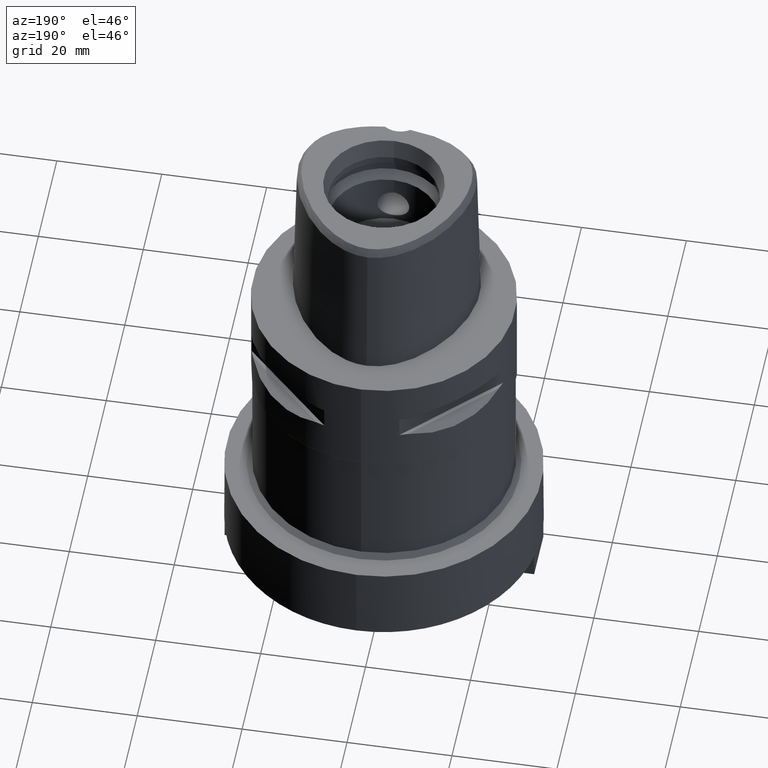
[diagram: clean part render]
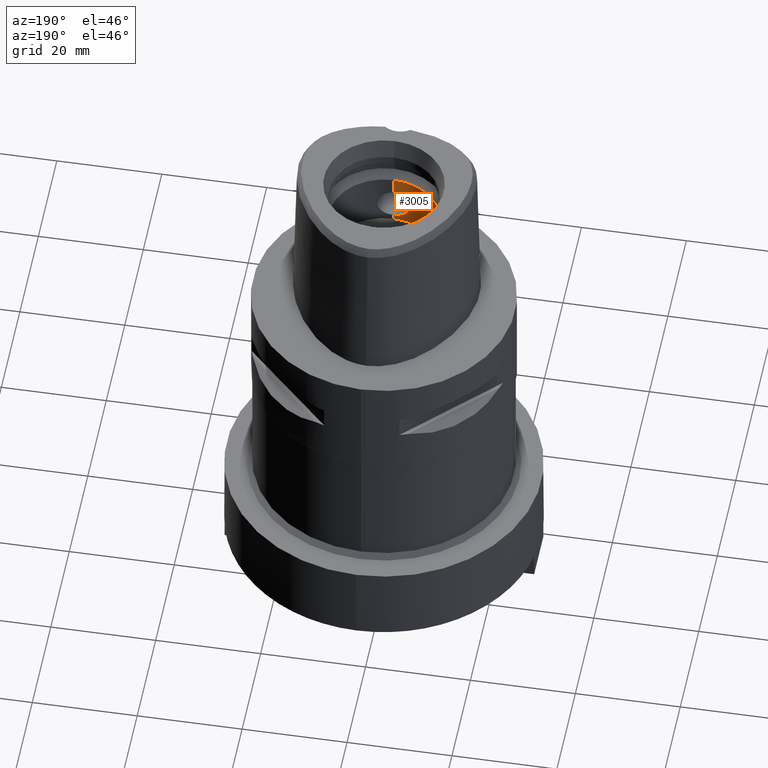
[diagram: same view with one face highlighted and labeled with its STEP entity id]
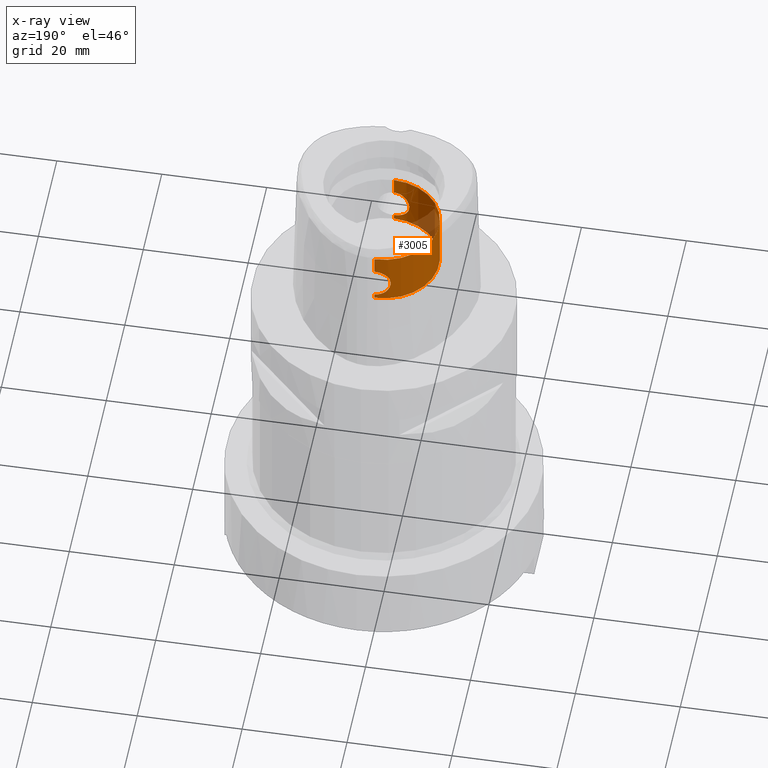
[diagram: x-ray of the same camera — body ghosted, the highlighted face saturated]
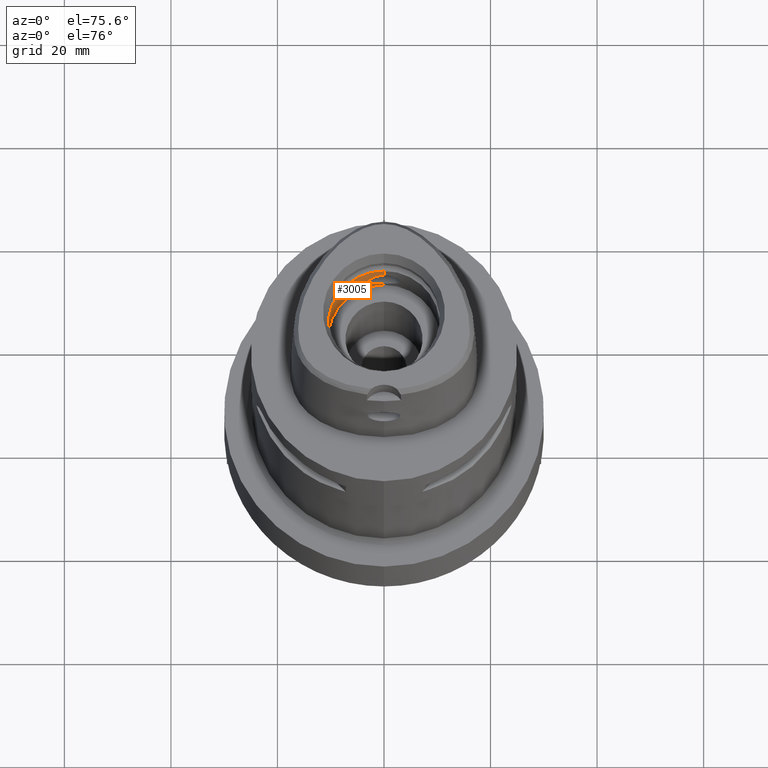
[diagram: same view with one face highlighted and labeled with its STEP entity id]
A machine part, auxiliary view. The second image highlights one B-rep face of the part: STEP entity #3005.
The next image is the same camera in x-ray: the body ghosted, the highlighted face saturated — about 11% of this face is hidden behind the body in this view.
A second angle (auxiliary view) of the same face is appended — the face is thin or edge-on in the first view.
In plain terms, the highlighted cylindrical surface (partial cylindrical patch) has radius 10.5 mm, axis along (0, 0, -1).
Its self-contained STEP definition (entity closure, byte-faithful):
#848=CARTESIAN_POINT('',(0.E0,1.610410540879E-14,1.E1));
#849=DIRECTION('',(0.E0,0.E0,-1.E0));
#850=DIRECTION('',(0.E0,-1.E0,0.E0));
#851=AXIS2_PLACEMENT_3D('',#848,#849,#850);
#872=CARTESIAN_POINT('',(0.E0,1.05E1,1.095E1));
#886=CARTESIAN_POINT('',(0.E0,1.05E1,1.705E1));
#891=DIRECTION('',(0.E0,0.E0,1.E0));
#892=VECTOR('',#891,3.35E0);
#893=CARTESIAN_POINT('',(0.E0,1.05E1,1.705E1));
#894=LINE('',#893,#892);
#912=CARTESIAN_POINT('',(0.E0,-1.05E1,1.095E1));
#917=DIRECTION('',(0.E0,0.E0,1.E0));
#918=VECTOR('',#917,9.5E-1);
#919=CARTESIAN_POINT('',(0.E0,1.05E1,1.E1));
#920=LINE('',#919,#918);
#938=CARTESIAN_POINT('',(0.E0,-1.05E1,1.095E1));
#939=CARTESIAN_POINT('',(-2.671874378010E-1,-1.05E1,1.095E1));
#940=CARTESIAN_POINT('',(-7.849210052205E-1,-1.047989530132E1,
1.101826418671E1));
#941=CARTESIAN_POINT('',(-1.524978130434E0,-1.039681972504E1,1.131776650371E1));
#942=CARTESIAN_POINT('',(-2.174059929054E0,-1.027812593696E1,1.181016231154E1));
#943=CARTESIAN_POINT('',(-2.670808578566E0,-1.015748814125E1,1.245368278313E1));
#944=CARTESIAN_POINT('',(-2.982991360778E0,-1.006802626031E1,1.321128899103E1));
#945=CARTESIAN_POINT('',(-3.083468539142E0,-1.003690021739E1,1.400149278725E1));
#946=CARTESIAN_POINT('',(-2.983142471121E0,-1.006795029898E1,1.478214584811E1));
#947=CARTESIAN_POINT('',(-2.682692769766E0,-1.015413770416E1,1.552234355639E1));
#948=CARTESIAN_POINT('',(-2.200164105292E0,-1.027238637363E1,1.616351282864E1));
#949=CARTESIAN_POINT('',(-1.549509876077E0,-1.039351810492E1,1.667017897328E1));
#950=CARTESIAN_POINT('',(-7.903728791330E-1,-1.047986038336E1,
1.698170363906E1));
#951=CARTESIAN_POINT('',(-2.686494715939E-1,-1.05E1,1.705E1));
#952=CARTESIAN_POINT('',(0.E0,-1.05E1,1.705E1));
#957=DIRECTION('',(0.E0,0.E0,1.E0));
#958=VECTOR('',#957,3.35E0);
#959=CARTESIAN_POINT('',(0.E0,-1.05E1,1.705E1));
#960=LINE('',#959,#958);
#964=CARTESIAN_POINT('',(0.E0,1.05E1,1.705E1));
#965=CARTESIAN_POINT('',(-2.671915763713E-1,1.05E1,1.705E1));
#966=CARTESIAN_POINT('',(-7.849362111640E-1,1.047989545366E1,1.698173650121E1));
#967=CARTESIAN_POINT('',(-1.525057820020E0,1.039680884418E1,1.668219430045E1));
#968=CARTESIAN_POINT('',(-2.174130501366E0,1.027811052678E1,1.618976321814E1));
#969=CARTESIAN_POINT('',(-2.670868470465E0,1.015747246527E1,1.554623631405E1));
#970=CARTESIAN_POINT('',(-2.983052802662E0,1.006800784422E1,1.478846570776E1));
#971=CARTESIAN_POINT('',(-3.083465961836E0,1.003690090642E1,1.399842799032E1));
#972=CARTESIAN_POINT('',(-2.983091359034E0,1.006796595272E1,1.321761935984E1));
#973=CARTESIAN_POINT('',(-2.682587365254E0,1.015416585409E1,1.247748638522E1));
#974=CARTESIAN_POINT('',(-2.200056203153E0,1.027240970348E1,1.183637931076E1));
#975=CARTESIAN_POINT('',(-1.549397995502E0,1.039353383713E1,1.132976295644E1));
#976=CARTESIAN_POINT('',(-7.903358102468E-1,1.047986147123E1,1.101829312234E1));
#977=CARTESIAN_POINT('',(-2.686371212201E-1,1.05E1,1.095E1));
#978=CARTESIAN_POINT('',(0.E0,1.05E1,1.095E1));
#983=DIRECTION('',(0.E0,0.E0,1.E0));
#984=VECTOR('',#983,9.5E-1);
#985=CARTESIAN_POINT('',(0.E0,-1.05E1,1.E1));
#986=LINE('',#985,#984);
#1083=CARTESIAN_POINT('',(0.E0,1.483659597167E-14,2.04E1));
#1084=DIRECTION('',(0.E0,0.E0,1.E0));
#1085=DIRECTION('',(0.E0,1.E0,0.E0));
#1086=AXIS2_PLACEMENT_3D('',#1083,#1084,#1085);
#1810=CARTESIAN_POINT('',(0.E0,1.05E1,1.E1));
#1811=CARTESIAN_POINT('',(0.E0,-1.05E1,1.E1));
#1812=VERTEX_POINT('',#1810);
#1813=VERTEX_POINT('',#1811);
#1814=VERTEX_POINT('',#872);
#1815=VERTEX_POINT('',#886);
#1816=CARTESIAN_POINT('',(0.E0,1.05E1,2.04E1));
#1817=VERTEX_POINT('',#1816);
#1818=CARTESIAN_POINT('',(0.E0,-1.05E1,2.04E1));
#1819=VERTEX_POINT('',#1818);
#1820=CARTESIAN_POINT('',(0.E0,-1.05E1,1.705E1));
#1821=VERTEX_POINT('',#1820);
#1822=VERTEX_POINT('',#912);
#2988=CARTESIAN_POINT('',(0.E0,1.610410540879E-14,3.15E1));
#2989=DIRECTION('',(0.E0,0.E0,-1.E0));
#2990=DIRECTION('',(0.E0,-1.E0,0.E0));
#2991=AXIS2_PLACEMENT_3D('',#2988,#2989,#2990);
#2992=CYLINDRICAL_SURFACE('',#2991,1.05E1);
#2994=ORIENTED_EDGE('',*,*,#2993,.T.);
#2995=ORIENTED_EDGE('',*,*,#2947,.T.);
#2997=ORIENTED_EDGE('',*,*,#2996,.F.);
#2998=ORIENTED_EDGE('',*,*,#2943,.F.);
#2999=ORIENTED_EDGE('',*,*,#2980,.T.);
#3000=ORIENTED_EDGE('',*,*,#2954,.F.);
#3001=ORIENTED_EDGE('',*,*,#2927,.F.);
#3002=ORIENTED_EDGE('',*,*,#2951,.T.);
#3003=EDGE_LOOP('',(#2994,#2995,#2997,#2998,#2999,#3000,#3001,#3002));
#3004=FACE_OUTER_BOUND('',#3003,.F.);
#852=CIRCLE('',#851,1.05E1);
#953=B_SPLINE_CURVE_WITH_KNOTS('',3,(#938,#939,#940,#941,#942,#943,#944,#945,
#946,#947,#948,#949,#950,#951,#952),.UNSPECIFIED.,.F.,.F.,(4,1,1,1,1,1,1,1,1,1,
1,1,4),(0.E0,8.333333333333E-2,1.666666666667E-1,2.5E-1,3.333333333333E-1,
4.166666666667E-1,5.E-1,5.833333333333E-1,6.666666666667E-1,7.5E-1,
8.333333333333E-1,9.166666666667E-1,1.E0),.UNSPECIFIED.);
#979=B_SPLINE_CURVE_WITH_KNOTS('',3,(#964,#965,#966,#967,#968,#969,#970,#971,
#972,#973,#974,#975,#976,#977,#978),.UNSPECIFIED.,.F.,.F.,(4,1,1,1,1,1,1,1,1,1,
1,1,4),(0.E0,8.333333333333E-2,1.666666666667E-1,2.5E-1,3.333333333333E-1,
4.166666666667E-1,5.E-1,5.833333333333E-1,6.666666666667E-1,7.5E-1,
8.333333333333E-1,9.166666666667E-1,1.E0),.UNSPECIFIED.);
#1087=CIRCLE('',#1086,1.05E1);
#2927=EDGE_CURVE('',#1813,#1812,#852,.T.);
#2943=EDGE_CURVE('',#1815,#1817,#894,.T.);
#2947=EDGE_CURVE('',#1821,#1819,#960,.T.);
#2951=EDGE_CURVE('',#1813,#1822,#986,.T.);
#2954=EDGE_CURVE('',#1812,#1814,#920,.T.);
#2980=EDGE_CURVE('',#1815,#1814,#979,.T.);
#2993=EDGE_CURVE('',#1822,#1821,#953,.T.);
#2996=EDGE_CURVE('',#1817,#1819,#1087,.T.);
#3005=ADVANCED_FACE('',(#3004),#2992,.F.);